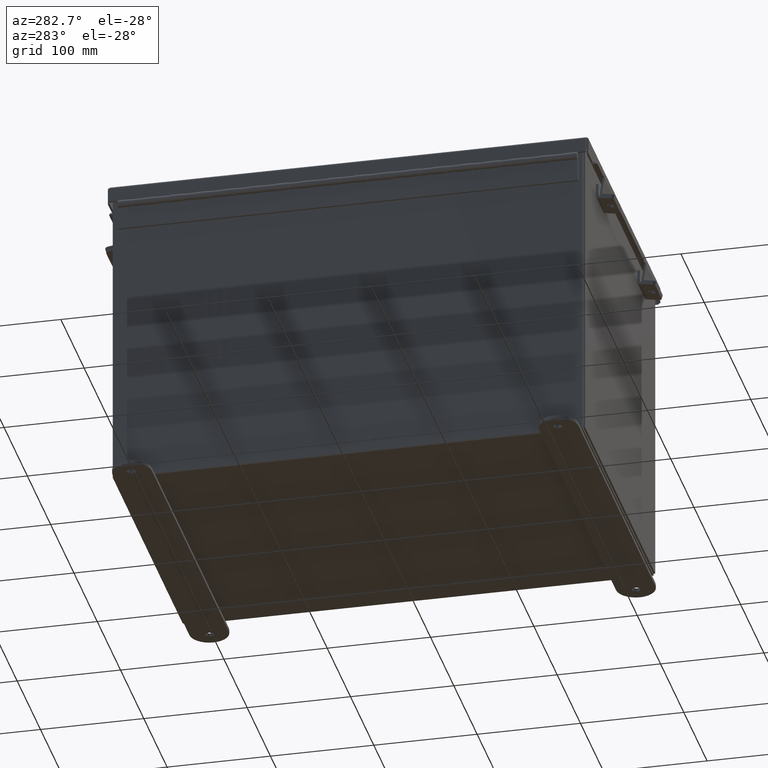
[diagram: clean part render]
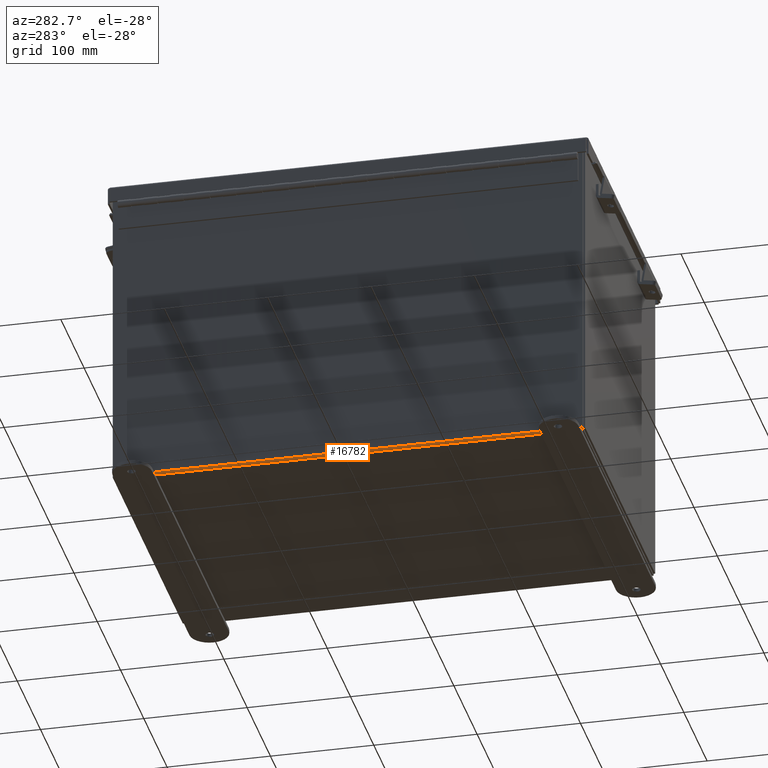
[diagram: same view with one face highlighted and labeled with its STEP entity id]
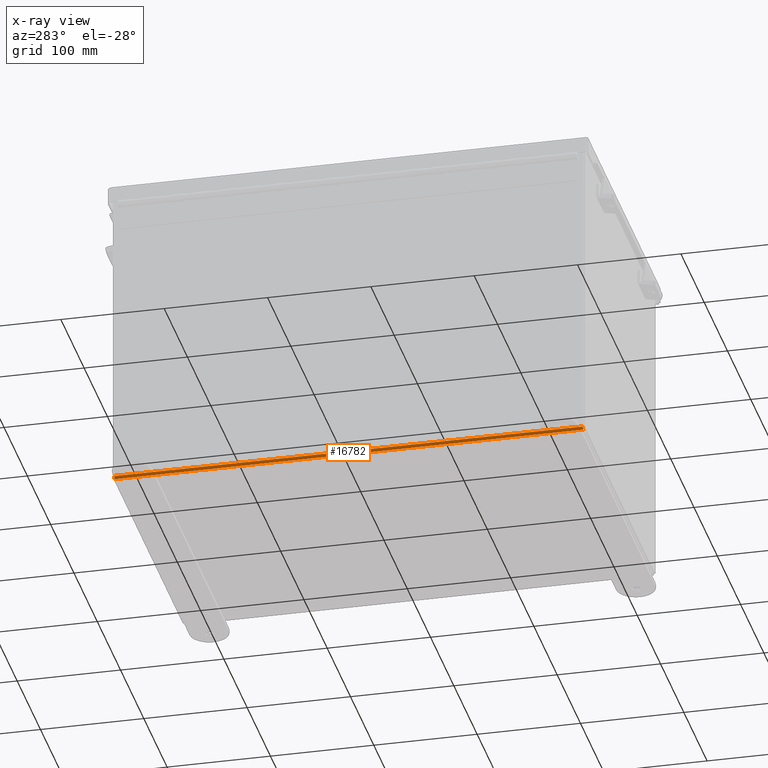
[diagram: x-ray of the same camera — body ghosted, the highlighted face saturated]
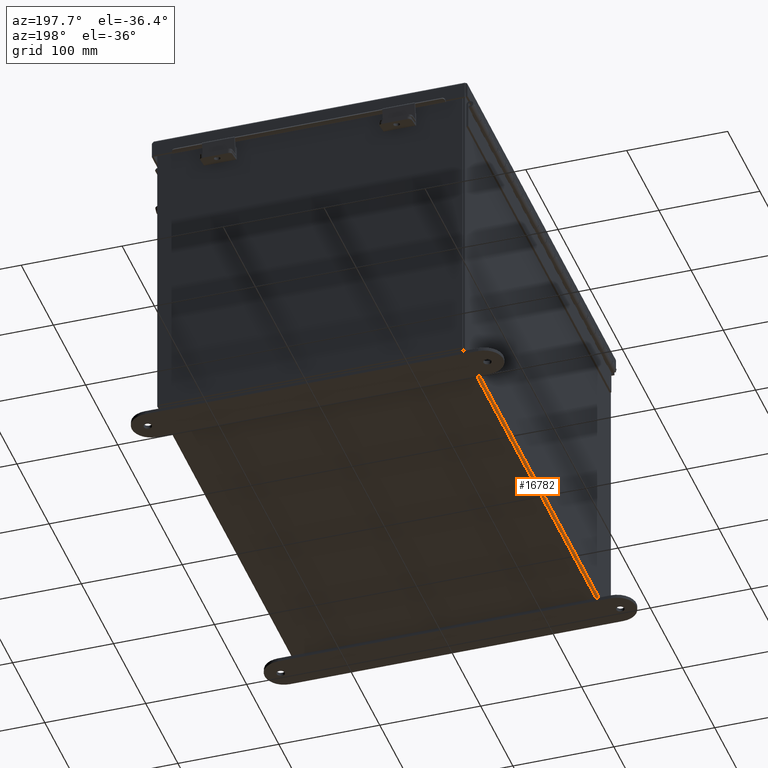
[diagram: same view with one face highlighted and labeled with its STEP entity id]
A machine part, auxiliary view. The second image highlights one B-rep face of the part: STEP entity #16782.
The next image is the same camera in x-ray: the body ghosted, the highlighted face saturated — about 0% of this face is hidden behind the body in this view.
A second angle (auxiliary view) of the same face is appended — the face is thin or edge-on in the first view.
In plain terms, the highlighted cylindrical surface (edge-blend (fillet) strip) has radius 2.2276 mm, axis along (0, -1, 0).
Its self-contained STEP definition (entity closure, byte-faithful):
#74 = VERTEX_POINT ( 'NONE', #2070 ) ;
#256 = ORIENTED_EDGE ( 'NONE', *, *, #900, .F. ) ;
#368 = CARTESIAN_POINT ( 'NONE',  ( -6.000000000000001800, 8.925299999999994700, 0.01299999999999965400 ) ) ;
#852 = ORIENTED_EDGE ( 'NONE', *, *, #8606, .T. ) ;
#900 = EDGE_CURVE ( 'NONE', #7287, #13802, #10044, .T. ) ;
#903 = VECTOR ( 'NONE', #7646, 39.37007874015748100 ) ;
#1156 = CARTESIAN_POINT ( 'NONE',  ( -6.000000000000001800, 8.925299999999994700, 0.01299999999999984300 ) ) ;
#1857 = EDGE_LOOP ( 'NONE', ( #10227, #11636, #852, #256 ) ) ;
#1888 = AXIS2_PLACEMENT_3D ( 'NONE', #6871, #15881, #15809 ) ;
#2070 = CARTESIAN_POINT ( 'NONE',  ( -6.000000000000001800, -8.925300000000001800, 0.01300000000000093600 ) ) ;
#3291 = CARTESIAN_POINT ( 'NONE',  ( -5.912300000000001000, -8.925300000000001800, 0.01300000000000143100 ) ) ;
#4794 = DIRECTION ( 'NONE',  ( 0.0000000000000000000, 0.0000000000000000000, -1.000000000000000000 ) ) ;
#5380 = LINE ( 'NONE', #10602, #903 ) ;
#5633 = FACE_OUTER_BOUND ( 'NONE', #1857, .T. ) ;
#6871 = CARTESIAN_POINT ( 'NONE',  ( -5.912300000000001000, -8.925300000000001800, 0.01300000000000143100 ) ) ;
#7287 = VERTEX_POINT ( 'NONE', #10915 ) ;
#7449 = VECTOR ( 'NONE', #16154, 39.37007874015748100 ) ;
#7457 = AXIS2_PLACEMENT_3D ( 'NONE', #3291, #13746, #4794 ) ;
#7646 = DIRECTION ( 'NONE',  ( -0.0000000000000000000, 1.000000000000000000, -8.208677865577646300E-017 ) ) ;
#8323 = DIRECTION ( 'NONE',  ( -0.0000000000000000000, 1.000000000000000000, -8.208677865577646300E-017 ) ) ;
#8606 = EDGE_CURVE ( 'NONE', #74, #13802, #19370, .T. ) ;
#9160 = CYLINDRICAL_SURFACE ( 'NONE', #1888, 0.08770000000000026400 ) ;
#10044 = CIRCLE ( 'NONE', #15865, 0.08770000000000009700 ) ;
#10227 = ORIENTED_EDGE ( 'NONE', *, *, #17107, .F. ) ;
#10602 = CARTESIAN_POINT ( 'NONE',  ( -5.912300000000001000, -8.925300000000001800, -0.07469999999999867000 ) ) ;
#10915 = CARTESIAN_POINT ( 'NONE',  ( -5.912300000000001000, 8.925299999999996500, -0.07470000000000000300 ) ) ;
#10919 = VERTEX_POINT ( 'NONE', #14191 ) ;
#11636 = ORIENTED_EDGE ( 'NONE', *, *, #13743, .F. ) ;
#13743 = EDGE_CURVE ( 'NONE', #74, #10919, #14163, .T. ) ;
#13746 = DIRECTION ( 'NONE',  ( 0.0000000000000000000, -1.000000000000000000, 8.208677865577646300E-017 ) ) ;
#13802 = VERTEX_POINT ( 'NONE', #368 ) ;
#14163 = CIRCLE ( 'NONE', #7457, 0.08770000000000009700 ) ;
#14191 = CARTESIAN_POINT ( 'NONE',  ( -5.912300000000001000, -8.925300000000001800, -0.07469999999999867000 ) ) ;
#15809 = DIRECTION ( 'NONE',  ( -1.000000000000000000, 0.0000000000000000000, -3.504366012397134600E-015 ) ) ;
#15865 = AXIS2_PLACEMENT_3D ( 'NONE', #17252, #8323, #18765 ) ;
#15881 = DIRECTION ( 'NONE',  ( 0.0000000000000000000, -1.000000000000000000, 8.208677865577646300E-017 ) ) ;
#16154 = DIRECTION ( 'NONE',  ( 2.144981163049411000E-031, 1.000000000000000000, -6.121582453618958700E-017 ) ) ;
#16782 = ADVANCED_FACE ( 'NONE', ( #5633 ), #9160, .T. ) ;
#17107 = EDGE_CURVE ( 'NONE', #10919, #7287, #5380, .T. ) ;
#17252 = CARTESIAN_POINT ( 'NONE',  ( -5.912300000000001000, 8.925299999999994700, 0.01299999999999996100 ) ) ;
#18765 = DIRECTION ( 'NONE',  ( 0.0000000000000000000, 0.0000000000000000000, -1.000000000000000000 ) ) ;
#19370 = LINE ( 'NONE', #1156, #7449 ) ;